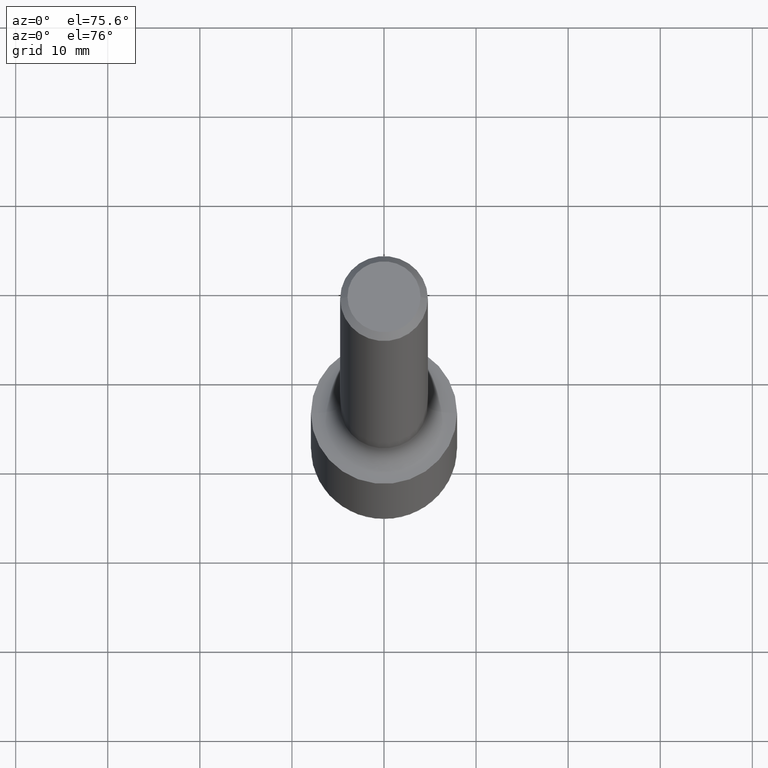
[diagram: clean part render]
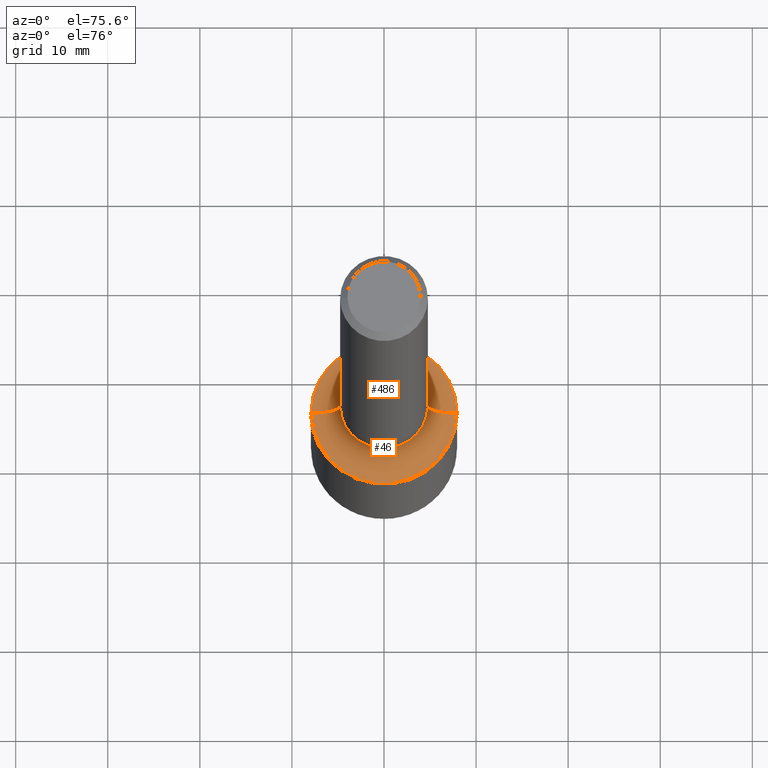
[diagram: same view with one multi-face feature highlighted, each face labeled with its STEP entity id]
A machine part, auxiliary view. The highlighted faces form ONE feature: a constant-radius fillet chain: 2 tangent blend faces with common blend radius 3.175 mm. The faces share edges in the B-rep.
Their STEP definitions:
[1] entity #486 (Torus):
#11 = AXIS2_PLACEMENT_3D ( 'NONE', #270, #147, #433 ) ;
#30 = AXIS2_PLACEMENT_3D ( 'NONE', #477, #162, #198 ) ;
#39 = ORIENTED_EDGE ( 'NONE', *, *, #51, .T. ) ;
#45 = VERTEX_POINT ( 'NONE', #84 ) ;
#51 = EDGE_CURVE ( 'NONE', #121, #294, #411, .T. ) ;
#70 = AXIS2_PLACEMENT_3D ( 'NONE', #143, #463, #311 ) ;
#84 = CARTESIAN_POINT ( 'NONE',  ( -0.3125000000000000000, -4.762516628435978873E-15, -2.000000000000000444 ) ) ;
#121 = VERTEX_POINT ( 'NONE', #144 ) ;
#123 = FACE_OUTER_BOUND ( 'NONE', #336, .T. ) ;
#131 = ORIENTED_EDGE ( 'NONE', *, *, #150, .F. ) ;
#143 = CARTESIAN_POINT ( 'NONE',  ( 4.890937612370273754E-29, -6.982962677686291954E-15, -2.000000000000000444 ) ) ;
#144 = CARTESIAN_POINT ( 'NONE',  ( 0.1875000000000002498, -7.855833012397076871E-15, -1.875000000000000666 ) ) ;
#147 = DIRECTION ( 'NONE',  ( -2.445468806185136597E-29, 3.491481338843145583E-15, 1.000000000000000000 ) ) ;
#148 = CIRCLE ( 'NONE', #70, 0.3125000000000000000 ) ;
#150 = EDGE_CURVE ( 'NONE', #121, #217, #317, .T. ) ;
#154 = CARTESIAN_POINT ( 'NONE',  ( 0.3125000000000000000, -9.165138514463251879E-15, -2.000000000000000444 ) ) ;
#157 = DIRECTION ( 'NONE',  ( 7.105427357601001859E-15, 1.000000000000000000, -3.491481338843145583E-15 ) ) ;
#162 = DIRECTION ( 'NONE',  ( -2.445468806185136597E-29, 3.491481338843145583E-15, 1.000000000000000000 ) ) ;
#165 = EDGE_CURVE ( 'NONE', #217, #45, #495, .T. ) ;
#186 = ORIENTED_EDGE ( 'NONE', *, *, #243, .T. ) ;
#191 = ORIENTED_EDGE ( 'NONE', *, *, #165, .F. ) ;
#198 = DIRECTION ( 'NONE',  ( 1.000000000000000000, -6.982962677686267499E-15, 4.883557194083114022E-29 ) ) ;
#217 = VERTEX_POINT ( 'NONE', #222 ) ;
#222 = CARTESIAN_POINT ( 'NONE',  ( -0.1875000000000002498, -4.988388254608345655E-15, -1.875000000000000666 ) ) ;
#243 = EDGE_CURVE ( 'NONE', #294, #45, #148, .T. ) ;
#255 = DIRECTION ( 'NONE',  ( 1.000000000000000000, -6.982962677686272233E-15, 0.000000000000000000 ) ) ;
#270 = CARTESIAN_POINT ( 'NONE',  ( 4.585254011597132801E-29, -6.546527510330900285E-15, -1.875000000000000666 ) ) ;
#294 = VERTEX_POINT ( 'NONE', #154 ) ;
#311 = DIRECTION ( 'NONE',  ( 1.000000000000000000, -6.982962677686269077E-15, 0.000000000000000000 ) ) ;
#317 = CIRCLE ( 'NONE', #11, 0.1875000000000002498 ) ;
#336 = EDGE_LOOP ( 'NONE', ( #191, #131, #39, #186 ) ) ;
#360 = CARTESIAN_POINT ( 'NONE',  ( -0.3125000000000000000, -4.326081461080587204E-15, -1.875000000000000666 ) ) ;
#378 = AXIS2_PLACEMENT_3D ( 'NONE', #360, #157, #428 ) ;
#411 = CIRCLE ( 'NONE', #451, 0.1249999999999996947 ) ;
#428 = DIRECTION ( 'NONE',  ( -1.000000000000000000, 7.105427357601001859E-15, 0.000000000000000000 ) ) ;
#433 = DIRECTION ( 'NONE',  ( 1.000000000000000000, -6.982962677686263555E-15, 0.000000000000000000 ) ) ;
#451 = AXIS2_PLACEMENT_3D ( 'NONE', #493, #478, #255 ) ;
#457 = TOROIDAL_SURFACE ( 'NONE', #30, 0.3125000000000000000, 0.1249999999999996947 ) ;
#463 = DIRECTION ( 'NONE',  ( -2.445468806185136597E-29, 3.491481338843145583E-15, 1.000000000000000000 ) ) ;
#477 = CARTESIAN_POINT ( 'NONE',  ( 4.585254011597132801E-29, -6.546527510330900285E-15, -1.875000000000000666 ) ) ;
#478 = DIRECTION ( 'NONE',  ( -6.982962677686266711E-15, -1.000000000000000000, 3.491481338843145583E-15 ) ) ;
#486 = ADVANCED_FACE ( 'NONE', ( #123 ), #457, .F. ) ;
#493 = CARTESIAN_POINT ( 'NONE',  ( 0.3125000000000000000, -8.728703347107858632E-15, -1.875000000000000666 ) ) ;
#495 = CIRCLE ( 'NONE', #378, 0.1249999999999996947 ) ;
[2] entity #46 (Torus):
#2 = EDGE_LOOP ( 'NONE', ( #279, #380, #509, #257 ) ) ;
#20 = EDGE_CURVE ( 'NONE', #217, #121, #169, .T. ) ;
#45 = VERTEX_POINT ( 'NONE', #84 ) ;
#46 = ADVANCED_FACE ( 'NONE', ( #214 ), #219, .F. ) ;
#51 = EDGE_CURVE ( 'NONE', #121, #294, #411, .T. ) ;
#80 = AXIS2_PLACEMENT_3D ( 'NONE', #129, #452, #211 ) ;
#84 = CARTESIAN_POINT ( 'NONE',  ( -0.3125000000000000000, -4.762516628435978873E-15, -2.000000000000000444 ) ) ;
#121 = VERTEX_POINT ( 'NONE', #144 ) ;
#129 = CARTESIAN_POINT ( 'NONE',  ( 4.585254011597132801E-29, -6.546527510330900285E-15, -1.875000000000000666 ) ) ;
#135 = DIRECTION ( 'NONE',  ( 1.000000000000000000, -6.982962677686263555E-15, 0.000000000000000000 ) ) ;
#144 = CARTESIAN_POINT ( 'NONE',  ( 0.1875000000000002498, -7.855833012397076871E-15, -1.875000000000000666 ) ) ;
#154 = CARTESIAN_POINT ( 'NONE',  ( 0.3125000000000000000, -9.165138514463251879E-15, -2.000000000000000444 ) ) ;
#157 = DIRECTION ( 'NONE',  ( 7.105427357601001859E-15, 1.000000000000000000, -3.491481338843145583E-15 ) ) ;
#165 = EDGE_CURVE ( 'NONE', #217, #45, #495, .T. ) ;
#169 = CIRCLE ( 'NONE', #202, 0.1875000000000002498 ) ;
#185 = DIRECTION ( 'NONE',  ( -2.445468806185136597E-29, 3.491481338843145583E-15, 1.000000000000000000 ) ) ;
#202 = AXIS2_PLACEMENT_3D ( 'NONE', #450, #494, #135 ) ;
#211 = DIRECTION ( 'NONE',  ( 1.000000000000000000, -6.982962677686267499E-15, 4.883557194083114022E-29 ) ) ;
#214 = FACE_OUTER_BOUND ( 'NONE', #2, .T. ) ;
#217 = VERTEX_POINT ( 'NONE', #222 ) ;
#219 = TOROIDAL_SURFACE ( 'NONE', #80, 0.3125000000000000000, 0.1249999999999996947 ) ;
#222 = CARTESIAN_POINT ( 'NONE',  ( -0.1875000000000002498, -4.988388254608345655E-15, -1.875000000000000666 ) ) ;
#255 = DIRECTION ( 'NONE',  ( 1.000000000000000000, -6.982962677686272233E-15, 0.000000000000000000 ) ) ;
#257 = ORIENTED_EDGE ( 'NONE', *, *, #51, .F. ) ;
#273 = CIRCLE ( 'NONE', #341, 0.3125000000000000000 ) ;
#279 = ORIENTED_EDGE ( 'NONE', *, *, #20, .F. ) ;
#282 = EDGE_CURVE ( 'NONE', #45, #294, #273, .T. ) ;
#294 = VERTEX_POINT ( 'NONE', #154 ) ;
#341 = AXIS2_PLACEMENT_3D ( 'NONE', #425, #185, #430 ) ;
#360 = CARTESIAN_POINT ( 'NONE',  ( -0.3125000000000000000, -4.326081461080587204E-15, -1.875000000000000666 ) ) ;
#378 = AXIS2_PLACEMENT_3D ( 'NONE', #360, #157, #428 ) ;
#380 = ORIENTED_EDGE ( 'NONE', *, *, #165, .T. ) ;
#411 = CIRCLE ( 'NONE', #451, 0.1249999999999996947 ) ;
#425 = CARTESIAN_POINT ( 'NONE',  ( 4.890937612370273754E-29, -6.982962677686291954E-15, -2.000000000000000444 ) ) ;
#428 = DIRECTION ( 'NONE',  ( -1.000000000000000000, 7.105427357601001859E-15, 0.000000000000000000 ) ) ;
#430 = DIRECTION ( 'NONE',  ( 1.000000000000000000, -6.982962677686269077E-15, 0.000000000000000000 ) ) ;
#450 = CARTESIAN_POINT ( 'NONE',  ( 4.585254011597132801E-29, -6.546527510330900285E-15, -1.875000000000000666 ) ) ;
#451 = AXIS2_PLACEMENT_3D ( 'NONE', #493, #478, #255 ) ;
#452 = DIRECTION ( 'NONE',  ( -2.445468806185136597E-29, 3.491481338843145583E-15, 1.000000000000000000 ) ) ;
#478 = DIRECTION ( 'NONE',  ( -6.982962677686266711E-15, -1.000000000000000000, 3.491481338843145583E-15 ) ) ;
#493 = CARTESIAN_POINT ( 'NONE',  ( 0.3125000000000000000, -8.728703347107858632E-15, -1.875000000000000666 ) ) ;
#494 = DIRECTION ( 'NONE',  ( -2.445468806185136597E-29, 3.491481338843145583E-15, 1.000000000000000000 ) ) ;
#495 = CIRCLE ( 'NONE', #378, 0.1249999999999996947 ) ;
#509 = ORIENTED_EDGE ( 'NONE', *, *, #282, .T. ) ;